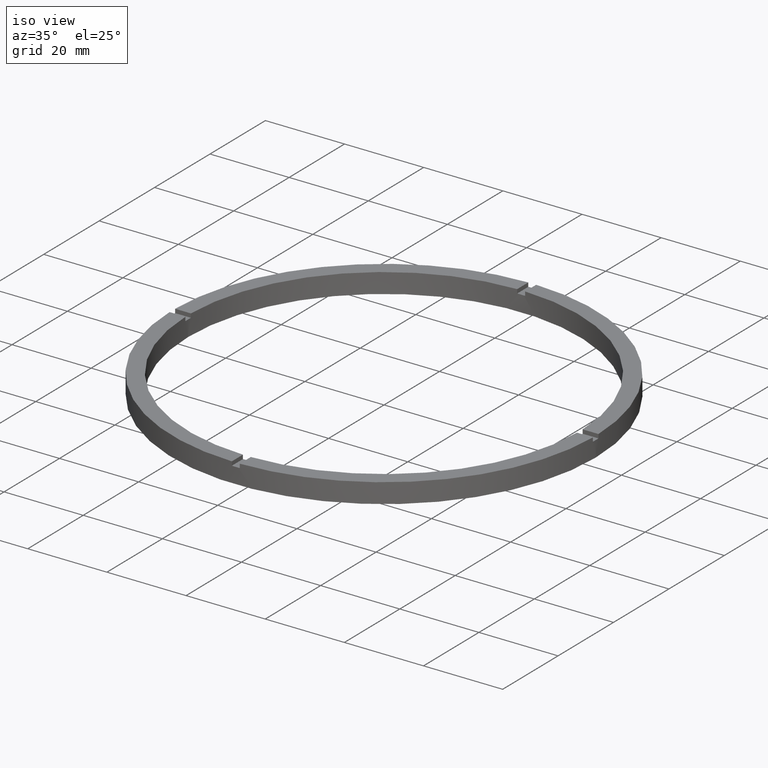
[diagram: clean part render]
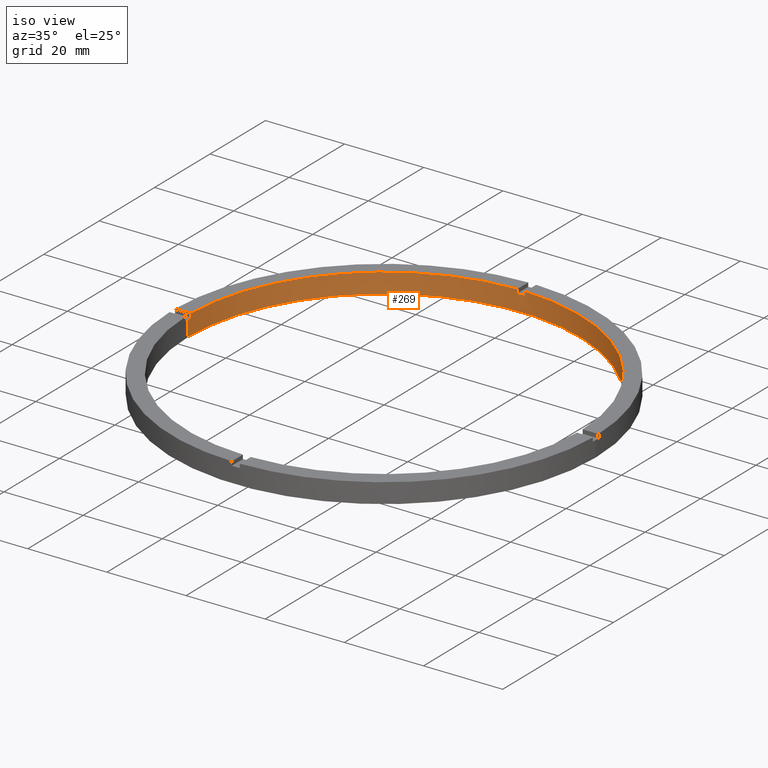
[diagram: same view with one face highlighted and labeled with its STEP entity id]
A machine part, iso view. The second image highlights one B-rep face of the part: STEP entity #269.
In plain terms, the highlighted cylindrical surface (partial cylindrical patch) has radius 49.5 mm, axis along (-0, -0, -1).
Its self-contained STEP definition (entity closure, byte-faithful):
#7 = DIRECTION ( 'NONE',  ( -1.000000000000000000, 0.000000000000000000, 0.000000000000000000 ) ) ;
#14 = DIRECTION ( 'NONE',  ( -0.000000000000000000, -0.000000000000000000, -1.000000000000000000 ) ) ;
#15 = CARTESIAN_POINT ( 'NONE',  ( -49.48989795907849043, 0.9999999999999681366, 5.000000000000000000 ) ) ;
#26 = CARTESIAN_POINT ( 'NONE',  ( 0.9999999999999726885, 49.48989795907849043, 4.000000000000000000 ) ) ;
#30 = LINE ( 'NONE', #563, #41 ) ;
#40 = CARTESIAN_POINT ( 'NONE',  ( 0.9999999999999726885, 49.48989795907849043, 5.000000000000000000 ) ) ;
#41 = VECTOR ( 'NONE', #606, 1000.000000000000000 ) ;
#53 = LINE ( 'NONE', #446, #569 ) ;
#59 = CARTESIAN_POINT ( 'NONE',  ( 0.000000000000000000, 0.000000000000000000, 5.000000000000000000 ) ) ;
#60 = CARTESIAN_POINT ( 'NONE',  ( 0.000000000000000000, 0.000000000000000000, 4.000000000000000000 ) ) ;
#64 = EDGE_CURVE ( 'NONE', #687, #200, #30, .T. ) ;
#68 = CYLINDRICAL_SURFACE ( 'NONE', #701, 49.50000000000000711 ) ;
#78 = DIRECTION ( 'NONE',  ( -0.000000000000000000, -0.000000000000000000, -1.000000000000000000 ) ) ;
#80 = AXIS2_PLACEMENT_3D ( 'NONE', #341, #714, #147 ) ;
#83 = EDGE_CURVE ( 'NONE', #432, #614, #292, .T. ) ;
#88 = EDGE_LOOP ( 'NONE', ( #456, #424, #451, #426, #702, #615, #163, #626, #709, #210, #103, #705 ) ) ;
#101 = DIRECTION ( 'NONE',  ( 0.000000000000000000, 0.000000000000000000, 1.000000000000000000 ) ) ;
#103 = ORIENTED_EDGE ( 'NONE', *, *, #593, .T. ) ;
#114 = LINE ( 'NONE', #434, #124 ) ;
#115 = CIRCLE ( 'NONE', #334, 49.50000000000000711 ) ;
#120 = EDGE_CURVE ( 'NONE', #189, #200, #567, .T. ) ;
#124 = VECTOR ( 'NONE', #14, 1000.000000000000000 ) ;
#131 = EDGE_CURVE ( 'NONE', #189, #692, #53, .T. ) ;
#135 = DIRECTION ( 'NONE',  ( 1.000000000000000000, 0.000000000000000000, 0.000000000000000000 ) ) ;
#147 = DIRECTION ( 'NONE',  ( 1.000000000000000000, 0.000000000000000000, 0.000000000000000000 ) ) ;
#149 = DIRECTION ( 'NONE',  ( 0.000000000000000000, 0.000000000000000000, 1.000000000000000000 ) ) ;
#153 = CARTESIAN_POINT ( 'NONE',  ( 49.48989795907849043, 0.9999999999998452349, 4.000000000000000000 ) ) ;
#162 = DIRECTION ( 'NONE',  ( 0.000000000000000000, -0.000000000000000000, 1.000000000000000000 ) ) ;
#163 = ORIENTED_EDGE ( 'NONE', *, *, #131, .F. ) ;
#173 = EDGE_CURVE ( 'NONE', #687, #457, #570, .T. ) ;
#189 = VERTEX_POINT ( 'NONE', #459 ) ;
#200 = VERTEX_POINT ( 'NONE', #15 ) ;
#210 = ORIENTED_EDGE ( 'NONE', *, *, #173, .T. ) ;
#243 = DIRECTION ( 'NONE',  ( 1.000000000000000000, 0.000000000000000000, 0.000000000000000000 ) ) ;
#259 = DIRECTION ( 'NONE',  ( 1.000000000000000000, 0.000000000000000000, 0.000000000000000000 ) ) ;
#263 = DIRECTION ( 'NONE',  ( -0.000000000000000000, -0.000000000000000000, -1.000000000000000000 ) ) ;
#269 = ADVANCED_FACE ( 'NONE', ( #578 ), #68, .F. ) ;
#271 = CARTESIAN_POINT ( 'NONE',  ( -49.48989795907849043, 0.9999999999999681366, 4.000000000000000000 ) ) ;
#273 = CARTESIAN_POINT ( 'NONE',  ( 49.48989795907849043, 0.9999999999998452349, 5.000000000000000000 ) ) ;
#292 = LINE ( 'NONE', #436, #562 ) ;
#301 = AXIS2_PLACEMENT_3D ( 'NONE', #498, #581, #629 ) ;
#313 = CIRCLE ( 'NONE', #80, 49.50000000000000711 ) ;
#316 = CARTESIAN_POINT ( 'NONE',  ( 0.000000000000000000, 0.000000000000000000, 5.000000000000000000 ) ) ;
#320 = EDGE_CURVE ( 'NONE', #614, #616, #313, .T. ) ;
#334 = AXIS2_PLACEMENT_3D ( 'NONE', #60, #162, #621 ) ;
#335 = DIRECTION ( 'NONE',  ( -0.000000000000000000, -0.000000000000000000, -1.000000000000000000 ) ) ;
#341 = CARTESIAN_POINT ( 'NONE',  ( 0.000000000000000000, 0.000000000000000000, 0.000000000000000000 ) ) ;
#342 = CARTESIAN_POINT ( 'NONE',  ( 0.000000000000000000, 0.000000000000000000, 4.000000000000000000 ) ) ;
#368 = VERTEX_POINT ( 'NONE', #26 ) ;
#378 = LINE ( 'NONE', #508, #637 ) ;
#379 = CIRCLE ( 'NONE', #301, 49.50000000000000711 ) ;
#383 = VECTOR ( 'NONE', #397, 1000.000000000000000 ) ;
#388 = LINE ( 'NONE', #273, #383 ) ;
#394 = CARTESIAN_POINT ( 'NONE',  ( -1.000000000000027311, 49.48989795907849043, 4.000000000000000000 ) ) ;
#397 = DIRECTION ( 'NONE',  ( -0.000000000000000000, -0.000000000000000000, -1.000000000000000000 ) ) ;
#424 = ORIENTED_EDGE ( 'NONE', *, *, #546, .T. ) ;
#426 = ORIENTED_EDGE ( 'NONE', *, *, #558, .T. ) ;
#432 = VERTEX_POINT ( 'NONE', #520 ) ;
#434 = CARTESIAN_POINT ( 'NONE',  ( -49.50000000000000711, 0.000000000000000000, 5.000000000000000000 ) ) ;
#436 = CARTESIAN_POINT ( 'NONE',  ( 49.50000000000000711, 6.062001655779399300E-15, 5.000000000000000000 ) ) ;
#446 = CARTESIAN_POINT ( 'NONE',  ( -1.000000000000027311, 49.48989795907849043, 5.000000000000000000 ) ) ;
#448 = VERTEX_POINT ( 'NONE', #40 ) ;
#450 = VERTEX_POINT ( 'NONE', #153 ) ;
#451 = ORIENTED_EDGE ( 'NONE', *, *, #557, .F. ) ;
#456 = ORIENTED_EDGE ( 'NONE', *, *, #83, .F. ) ;
#457 = VERTEX_POINT ( 'NONE', #500 ) ;
#459 = CARTESIAN_POINT ( 'NONE',  ( -1.000000000000027311, 49.48989795907849043, 5.000000000000000000 ) ) ;
#498 = CARTESIAN_POINT ( 'NONE',  ( 0.000000000000000000, 0.000000000000000000, 5.000000000000000000 ) ) ;
#499 = EDGE_CURVE ( 'NONE', #368, #692, #115, .T. ) ;
#500 = CARTESIAN_POINT ( 'NONE',  ( -49.50000000000000711, 0.000000000000000000, 4.000000000000000000 ) ) ;
#508 = CARTESIAN_POINT ( 'NONE',  ( 0.9999999999999726885, 49.48989795907849043, 5.000000000000000000 ) ) ;
#517 = DIRECTION ( 'NONE',  ( 0.000000000000000000, 0.000000000000000000, 1.000000000000000000 ) ) ;
#520 = CARTESIAN_POINT ( 'NONE',  ( 49.50000000000000711, 6.062001655779399300E-15, 4.000000000000000000 ) ) ;
#541 = EDGE_CURVE ( 'NONE', #368, #448, #378, .T. ) ;
#546 = EDGE_CURVE ( 'NONE', #432, #450, #651, .T. ) ;
#557 = EDGE_CURVE ( 'NONE', #685, #450, #388, .T. ) ;
#558 = EDGE_CURVE ( 'NONE', #685, #448, #379, .T. ) ;
#562 = VECTOR ( 'NONE', #78, 1000.000000000000000 ) ;
#563 = CARTESIAN_POINT ( 'NONE',  ( -49.48989795907849043, 0.9999999999999681366, 5.000000000000000000 ) ) ;
#567 = CIRCLE ( 'NONE', #755, 49.50000000000000711 ) ;
#569 = VECTOR ( 'NONE', #263, 1000.000000000000000 ) ;
#570 = CIRCLE ( 'NONE', #587, 49.50000000000000711 ) ;
#578 = FACE_OUTER_BOUND ( 'NONE', #88, .T. ) ;
#581 = DIRECTION ( 'NONE',  ( 0.000000000000000000, 0.000000000000000000, 1.000000000000000000 ) ) ;
#587 = AXIS2_PLACEMENT_3D ( 'NONE', #613, #517, #259 ) ;
#593 = EDGE_CURVE ( 'NONE', #457, #616, #114, .T. ) ;
#596 = CARTESIAN_POINT ( 'NONE',  ( 49.50000000000000711, 6.062001655779399300E-15, 0.000000000000000000 ) ) ;
#603 = DIRECTION ( 'NONE',  ( 0.000000000000000000, 0.000000000000000000, 1.000000000000000000 ) ) ;
#606 = DIRECTION ( 'NONE',  ( 0.000000000000000000, 0.000000000000000000, 1.000000000000000000 ) ) ;
#609 = AXIS2_PLACEMENT_3D ( 'NONE', #342, #149, #243 ) ;
#613 = CARTESIAN_POINT ( 'NONE',  ( 0.000000000000000000, 0.000000000000000000, 4.000000000000000000 ) ) ;
#614 = VERTEX_POINT ( 'NONE', #596 ) ;
#615 = ORIENTED_EDGE ( 'NONE', *, *, #499, .T. ) ;
#616 = VERTEX_POINT ( 'NONE', #654 ) ;
#621 = DIRECTION ( 'NONE',  ( 1.000000000000000000, 0.000000000000000000, 0.000000000000000000 ) ) ;
#624 = CARTESIAN_POINT ( 'NONE',  ( 49.48989795907849043, 0.9999999999998452349, 5.000000000000000000 ) ) ;
#626 = ORIENTED_EDGE ( 'NONE', *, *, #120, .T. ) ;
#629 = DIRECTION ( 'NONE',  ( 1.000000000000000000, 0.000000000000000000, 0.000000000000000000 ) ) ;
#637 = VECTOR ( 'NONE', #101, 1000.000000000000000 ) ;
#651 = CIRCLE ( 'NONE', #609, 49.50000000000000711 ) ;
#654 = CARTESIAN_POINT ( 'NONE',  ( -49.50000000000000711, 0.000000000000000000, 0.000000000000000000 ) ) ;
#685 = VERTEX_POINT ( 'NONE', #624 ) ;
#687 = VERTEX_POINT ( 'NONE', #271 ) ;
#692 = VERTEX_POINT ( 'NONE', #394 ) ;
#701 = AXIS2_PLACEMENT_3D ( 'NONE', #59, #335, #7 ) ;
#702 = ORIENTED_EDGE ( 'NONE', *, *, #541, .F. ) ;
#705 = ORIENTED_EDGE ( 'NONE', *, *, #320, .F. ) ;
#709 = ORIENTED_EDGE ( 'NONE', *, *, #64, .F. ) ;
#714 = DIRECTION ( 'NONE',  ( 0.000000000000000000, 0.000000000000000000, 1.000000000000000000 ) ) ;
#755 = AXIS2_PLACEMENT_3D ( 'NONE', #316, #603, #135 ) ;